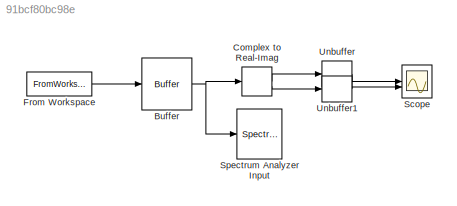
MODEL slx_91bcf80bc98e
KIND model
CONFIG AbsTol = auto
CONFIG EnableMultiTasking = off
CONFIG FixedStep = auto
CONFIG MaxStep = auto
CONFIG MinStep = auto
CONFIG RelTol = 1e-3
CONFIG SampleTimeConstraint = Unconstrained
CONFIG SolverName = VariableStepAuto
CONFIG StartTime = 0.0
CONFIG StopTime = num_samples/fs
BLOCK [Buffer] Buffer
  N = 2048
  OutputFrames = off
BLOCK [ComplexToRealImag] Complex to Real-Imag
BLOCK [FromWorkspace] From Workspace
  SampleTime = 1/fs
  VariableName = ts_data_samples
BLOCK [Scope] Scope
  Floating = off
  NumInputPorts = 2
  ScopeSpecificationString = Simulink.scopes.TimeScopeBlockCfg('CurrentConfiguration', extmgr.ConfigurationSet(extmgr.Configuration('Core','General UI',true),extmgr.Configuration('Core','Source UI',true),extmgr.Configuration('Sources','WiredSimulink',true),extmgr.Configuration('Visuals','Time Domain',true,'SerializedDisplays',{struct('MinYLimReal','-2.16148','MaxYLimReal','2.30345','YLabelReal','','MinYLimMag','0','MaxYLimMag...<+3727ch>
BLOCK [SpectrumAnalyzer] Spectrum Analyzer Input
  GraphicalSettings = {"GraphicalSettings":{"Style":{"BackgroundColor":[0.12941176470588237,0.12941176470588237,0.12941176470588237],"AxesColor":[0.07058823529411765,0.07058823529411765,0.07058823529411765],"LabelsColor":[0.8509803921568627,0.8509803921568627,0.8509803921568627],"PreserveColors":false,"Visible":[true],"LineStyle":["-"],"LineColor":[[1,1,0.06666666666666667]],"LineWidth":[1.5],"Marker":["none"],"FontSiz...<+929ch>
  ScopeFrameLocation = window
  SelectedToolstripTab = spectrumAnalyzerToolstrip.spectrogramTab
  Span = 128000000
  StartFrequency = -64000000
  StopFrequency = 64000000
  TimeSpan = 0.110592
  TimeSpanSource = Property
  ViewType = Spectrum and spectrogram
  Visible = on
  WasSavedAsWebScope = on
  WindowPosition = [1921.000000,-319.000000,1920.000000,1017.000000,]
  YLimits = [-15.6057143,7.09813491]
BLOCK [Unbuffer] Unbuffer
BLOCK [Unbuffer] Unbuffer1
NET Buffer:1 -> Complex to Real-Imag:1, Spectrum Analyzer Input:1
LINE Complex to Real-Imag:1 -> Unbuffer:1
LINE Complex to Real-Imag:2 -> Unbuffer1:1
LINE From Workspace:1 -> Buffer:1
LINE Unbuffer1:1 -> Scope:2
LINE Unbuffer:1 -> Scope:1
note: NET lines group one-source signal fan-out (src -> all destinations, sorted); 1:1 wires keep LINE
